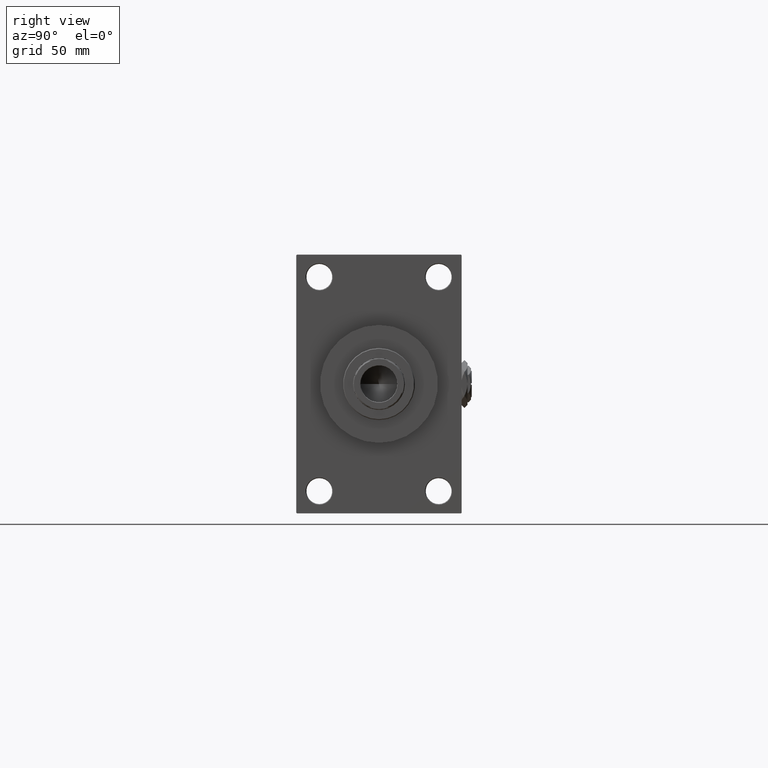
[diagram: clean part render]
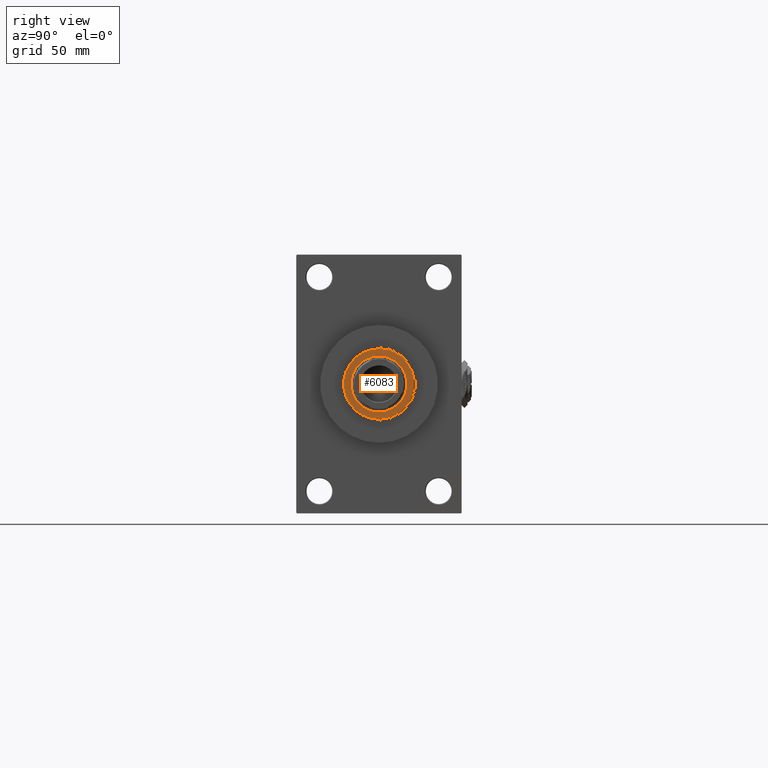
[diagram: same view with one face highlighted and labeled with its STEP entity id]
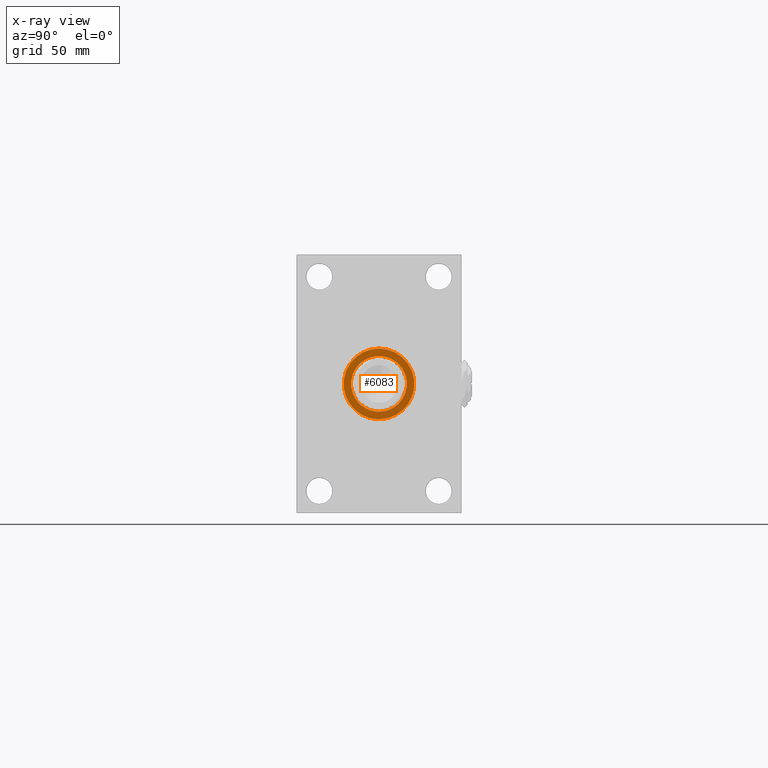
[diagram: x-ray of the same camera — body ghosted, the highlighted face saturated]
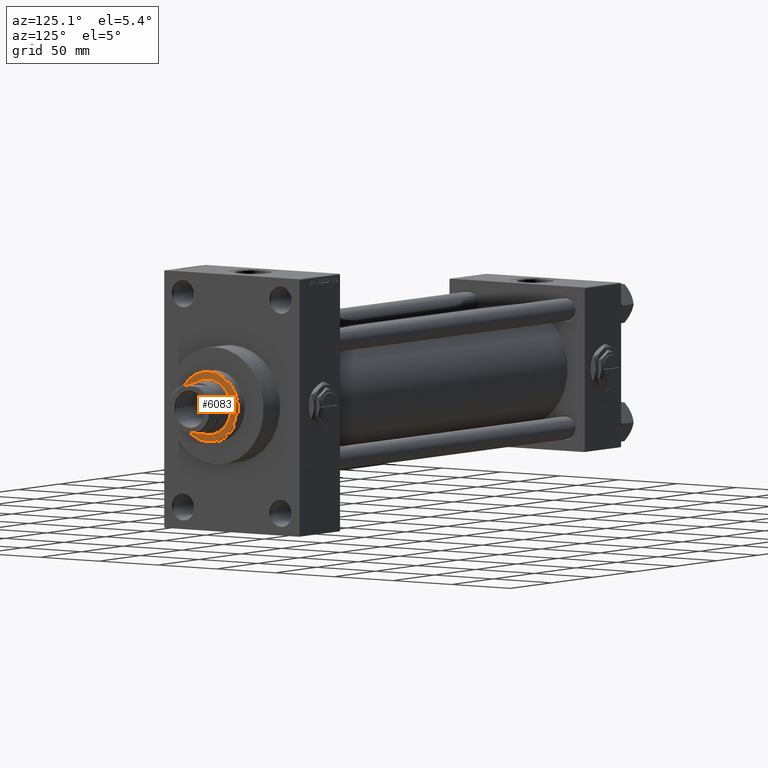
[diagram: same view with one face highlighted and labeled with its STEP entity id]
A machine part, right view. The second image highlights one B-rep face of the part: STEP entity #6083.
The next image is the same camera in x-ray: the body ghosted, the highlighted face saturated — about 0% of this face is hidden behind the body in this view.
A second angle (auxiliary view) of the same face is appended — the face is thin or edge-on in the first view.
In plain terms, the highlighted planar face has unit normal (1, -0, -0).
Its self-contained STEP definition (entity closure, byte-faithful):
#468 = ORIENTED_EDGE ( 'NONE', *, *, #12994, .T. ) ;
#1778 = CARTESIAN_POINT ( 'NONE',  ( -19.50000000000000000, 2.388061258337338939E-15, 52.25999999999999801 ) ) ;
#6083 = ADVANCED_FACE ( 'NONE', ( #23905, #23658 ), #28186, .T. ) ;
#7229 = ORIENTED_EDGE ( 'NONE', *, *, #39842, .F. ) ;
#9638 = ORIENTED_EDGE ( 'NONE', *, *, #28869, .F. ) ;
#9893 = AXIS2_PLACEMENT_3D ( 'NONE', #38188, #30896, #41473 ) ;
#12994 = EDGE_CURVE ( 'NONE', #49440, #21629, #18397, .T. ) ;
#14776 = DIRECTION ( 'NONE',  ( 0.000000000000000000, 0.000000000000000000, 1.000000000000000000 ) ) ;
#16847 = EDGE_LOOP ( 'NONE', ( #9638, #7229 ) ) ;
#18397 = CIRCLE ( 'NONE', #19242, 24.49999999999998224 ) ;
#19242 = AXIS2_PLACEMENT_3D ( 'NONE', #36044, #46857, #27996 ) ;
#19759 = AXIS2_PLACEMENT_3D ( 'NONE', #42777, #27678, #35977 ) ;
#20910 = CARTESIAN_POINT ( 'NONE',  ( -24.49999999999998224, 0.000000000000000000, 52.25999999999999801 ) ) ;
#21076 = VERTEX_POINT ( 'NONE', #1778 ) ;
#21629 = VERTEX_POINT ( 'NONE', #38080 ) ;
#22377 = CARTESIAN_POINT ( 'NONE',  ( 19.50000000000000000, 0.000000000000000000, 52.25999999999999801 ) ) ;
#22531 = DIRECTION ( 'NONE',  ( 1.000000000000000000, 0.000000000000000000, 0.000000000000000000 ) ) ;
#23658 = FACE_OUTER_BOUND ( 'NONE', #26273, .T. ) ;
#23905 = FACE_BOUND ( 'NONE', #16847, .T. ) ;
#25960 = AXIS2_PLACEMENT_3D ( 'NONE', #44741, #14776, #49246 ) ;
#25997 = CIRCLE ( 'NONE', #25960, 19.50000000000000000 ) ;
#26028 = CIRCLE ( 'NONE', #37264, 19.50000000000000000 ) ;
#26273 = EDGE_LOOP ( 'NONE', ( #468, #30493 ) ) ;
#26804 = DIRECTION ( 'NONE',  ( 0.000000000000000000, 0.000000000000000000, 1.000000000000000000 ) ) ;
#27678 = DIRECTION ( 'NONE',  ( 0.000000000000000000, 0.000000000000000000, 1.000000000000000000 ) ) ;
#27996 = DIRECTION ( 'NONE',  ( 1.000000000000000000, 0.000000000000000000, 0.000000000000000000 ) ) ;
#28186 = PLANE ( 'NONE',  #19759 ) ;
#28869 = EDGE_CURVE ( 'NONE', #43927, #21076, #25997, .T. ) ;
#29215 = EDGE_CURVE ( 'NONE', #21629, #49440, #32398, .T. ) ;
#30493 = ORIENTED_EDGE ( 'NONE', *, *, #29215, .T. ) ;
#30827 = CARTESIAN_POINT ( 'NONE',  ( 0.000000000000000000, 0.000000000000000000, 52.25999999999999801 ) ) ;
#30896 = DIRECTION ( 'NONE',  ( 0.000000000000000000, 0.000000000000000000, 1.000000000000000000 ) ) ;
#32398 = CIRCLE ( 'NONE', #9893, 24.49999999999998224 ) ;
#35977 = DIRECTION ( 'NONE',  ( 1.000000000000000000, 0.000000000000000000, -0.000000000000000000 ) ) ;
#36044 = CARTESIAN_POINT ( 'NONE',  ( 0.000000000000000000, 0.000000000000000000, 52.25999999999999801 ) ) ;
#37264 = AXIS2_PLACEMENT_3D ( 'NONE', #30827, #26804, #22531 ) ;
#38080 = CARTESIAN_POINT ( 'NONE',  ( 24.49999999999998224, 3.031000827889698072E-15, 52.25999999999999801 ) ) ;
#38188 = CARTESIAN_POINT ( 'NONE',  ( 0.000000000000000000, 0.000000000000000000, 52.25999999999999801 ) ) ;
#39842 = EDGE_CURVE ( 'NONE', #21076, #43927, #26028, .T. ) ;
#41473 = DIRECTION ( 'NONE',  ( 1.000000000000000000, 0.000000000000000000, 0.000000000000000000 ) ) ;
#42777 = CARTESIAN_POINT ( 'NONE',  ( 0.000000000000000000, 0.000000000000000000, 52.25999999999999801 ) ) ;
#43927 = VERTEX_POINT ( 'NONE', #22377 ) ;
#44741 = CARTESIAN_POINT ( 'NONE',  ( 0.000000000000000000, 0.000000000000000000, 52.25999999999999801 ) ) ;
#46857 = DIRECTION ( 'NONE',  ( 0.000000000000000000, 0.000000000000000000, 1.000000000000000000 ) ) ;
#49246 = DIRECTION ( 'NONE',  ( 1.000000000000000000, 0.000000000000000000, 0.000000000000000000 ) ) ;
#49440 = VERTEX_POINT ( 'NONE', #20910 ) ;